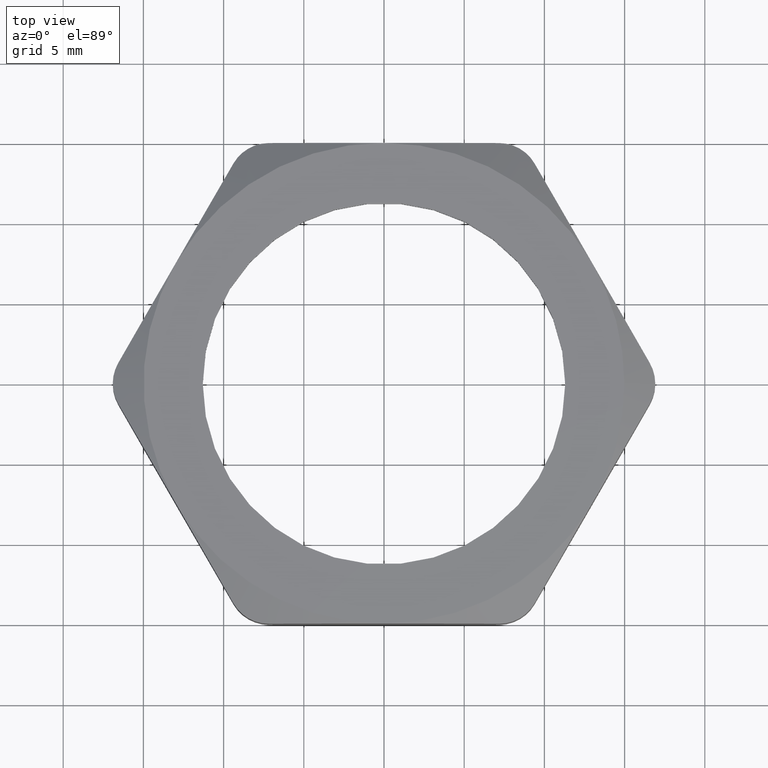
[diagram: clean part render]
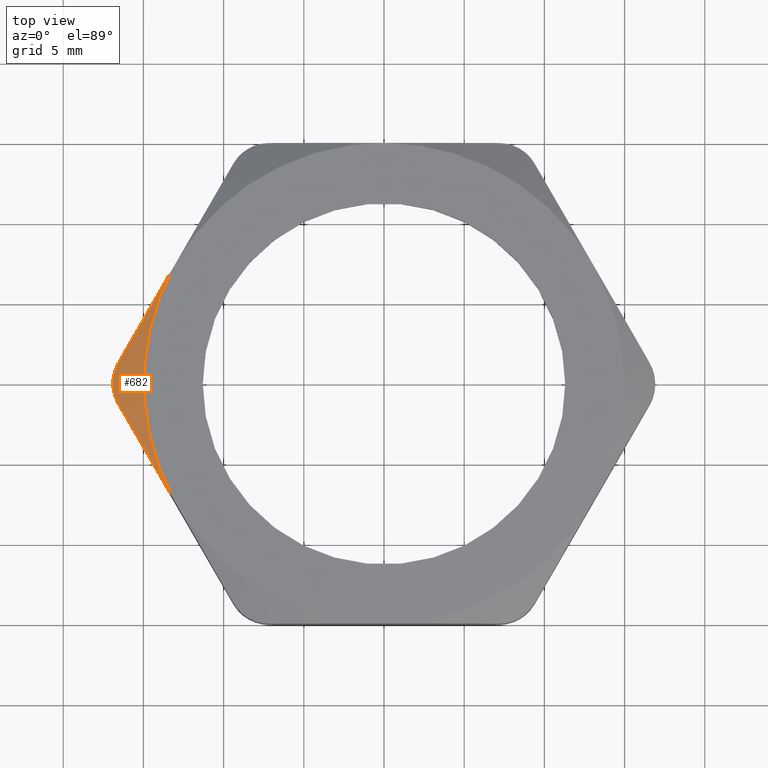
[diagram: same view with one face highlighted and labeled with its STEP entity id]
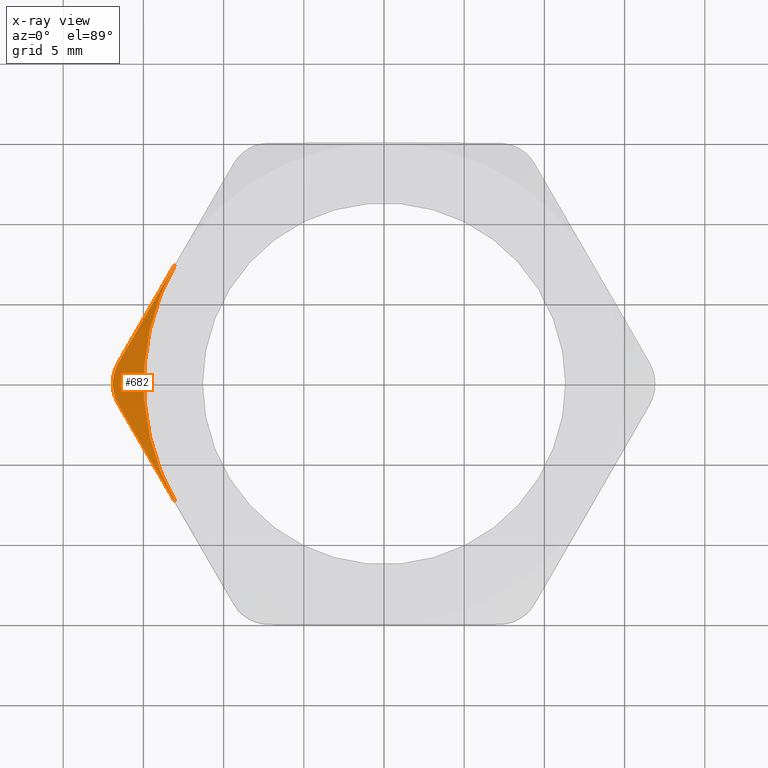
[diagram: x-ray of the same camera — body ghosted, the highlighted face saturated]
A machine part, top view. The second image highlights one B-rep face of the part: STEP entity #682.
The next image is the same camera in x-ray: the body ghosted, the highlighted face saturated — about 0% of this face is hidden behind the body in this view.
In plain terms, the highlighted conical surface has half-angle 60 deg.
Its self-contained STEP definition (entity closure, byte-faithful):
#46 = ORIENTED_EDGE ( 'NONE', *, *, #914, .T. ) ;
#87 = EDGE_CURVE ( 'NONE', #612, #915, #448, .T. ) ;
#112 = ORIENTED_EDGE ( 'NONE', *, *, #641, .T. ) ;
#113 = ORIENTED_EDGE ( 'NONE', *, *, #638, .F. ) ;
#114 = ORIENTED_EDGE ( 'NONE', *, *, #87, .T. ) ;
#439 = CARTESIAN_POINT ( 'NONE',  ( -0.6658032638058331000, 1.280553749522566600E-016, 0.1962349652362502500 ) ) ;
#440 = CARTESIAN_POINT ( 'NONE',  ( -0.6658032638058332100, 0.008796958277295262000, 0.1962349652362503100 ) ) ;
#441 = CARTESIAN_POINT ( 'NONE',  ( -0.6646291145683206300, 0.01761796163042872800, 0.1968098203050944200 ) ) ;
#442 = CARTESIAN_POINT ( 'NONE',  ( -0.6600528044583208200, 0.03455380496755470300, 0.1990651087361324800 ) ) ;
#443 = CARTESIAN_POINT ( 'NONE',  ( -0.6567251149565681600, 0.04251873428871227900, 0.2007090149173710000 ) ) ;
#444 = CARTESIAN_POINT ( 'NONE',  ( -0.6524058041842769600, 0.05000000000000012100, 0.2028654170483545100 ) ) ;
#448 = B_SPLINE_CURVE_WITH_KNOTS ( 'NONE', 3,
 ( #444, #443, #442, #441, #440, #439 ),
 .UNSPECIFIED., .F., .F.,
 ( 4, 2, 4 ),
 ( 2.168404344971008900E-019, 0.0006693429813218865600, 0.001338685962643772900 ),
 .UNSPECIFIED. ) ;
#577 = VERTEX_POINT ( 'NONE', #1208 ) ;
#578 = EDGE_CURVE ( 'NONE', #577, #612, #1260, .T. ) ;
#612 = VERTEX_POINT ( 'NONE', #1352 ) ;
#638 = EDGE_CURVE ( 'NONE', #577, #660, #1404, .T. ) ;
#641 = EDGE_CURVE ( 'NONE', #1326, #660, #1399, .T. ) ;
#660 = VERTEX_POINT ( 'NONE', #1469 ) ;
#682 = ADVANCED_FACE ( 'NONE', ( #1471 ), #1470, .T. ) ;
#683 = EDGE_LOOP ( 'NONE', ( #684, #114, #46, #112, #113 ) ) ;
#684 = ORIENTED_EDGE ( 'NONE', *, *, #578, .T. ) ;
#914 = EDGE_CURVE ( 'NONE', #915, #1326, #1957, .T. ) ;
#915 = VERTEX_POINT ( 'NONE', #1956 ) ;
#1208 = CARTESIAN_POINT ( 'NONE',  ( -0.5109549882328189300, 0.2949999999999999800, 0.2399999999999999900 ) ) ;
#1252 = CARTESIAN_POINT ( 'NONE',  ( -0.6524058041842769600, 0.05000000000000012100, 0.2028654170483545100 ) ) ;
#1253 = CARTESIAN_POINT ( 'NONE',  ( -0.6292673937338334500, 0.09007690250655098200, 0.2144171946891279500 ) ) ;
#1254 = CARTESIAN_POINT ( 'NONE',  ( -0.6059455771186180700, 0.1304714738089080300, 0.2237544903653499700 ) ) ;
#1255 = CARTESIAN_POINT ( 'NONE',  ( -0.5705983417541263800, 0.1916946813673030500, 0.2333592633957465000 ) ) ;
#1256 = CARTESIAN_POINT ( 'NONE',  ( -0.5587551826901052700, 0.2122076345883074400, 0.2358273798961814900 ) ) ;
#1257 = CARTESIAN_POINT ( 'NONE',  ( -0.5349351559654631500, 0.2534651311130362000, 0.2391491891068571500 ) ) ;
#1258 = CARTESIAN_POINT ( 'NONE',  ( -0.5229146370110722100, 0.2742852806753856000, 0.2400000000000003800 ) ) ;
#1259 = CARTESIAN_POINT ( 'NONE',  ( -0.5109549882328189300, 0.2949999999999999800, 0.2399999999999999900 ) ) ;
#1260 = B_SPLINE_CURVE_WITH_KNOTS ( 'NONE', 3,
 ( #1259, #1258, #1257, #1256, #1255, #1254, #1253, #1252 ),
 .UNSPECIFIED., .F., .F.,
 ( 4, 2, 2, 4 ),
 ( 0.008754818042027729500, 0.01055895048476103600, 0.01236308292749434300, 0.01597134781296095600 ),
 .UNSPECIFIED. ) ;
#1326 = VERTEX_POINT ( 'NONE', #2291 ) ;
#1352 = CARTESIAN_POINT ( 'NONE',  ( -0.6524058041842769600, 0.05000000000000012100, 0.2028654170483545100 ) ) ;
#1393 = CARTESIAN_POINT ( 'NONE',  ( -0.5109549882328188200, -0.2949999999999997600, 0.2399999999999999900 ) ) ;
#1394 = CARTESIAN_POINT ( 'NONE',  ( -0.5349746398928855200, -0.2533967429446583000, 0.2400000000000004400 ) ) ;
#1395 = CARTESIAN_POINT ( 'NONE',  ( -0.5587481660595381400, -0.2122197877489475900, 0.2365731363345083300 ) ) ;
#1396 = CARTESIAN_POINT ( 'NONE',  ( -0.6058687422853292800, -0.1306045556439552900, 0.2237814809296384300 ) ) ;
#1397 = CARTESIAN_POINT ( 'NONE',  ( -0.6292176136207235900, -0.09016312419166337700, 0.2144420472518745200 ) ) ;
#1398 = CARTESIAN_POINT ( 'NONE',  ( -0.6524058041842769600, -0.04999999999999985000, 0.2028654170483544800 ) ) ;
#1399 = B_SPLINE_CURVE_WITH_KNOTS ( 'NONE', 3,
 ( #1398, #1397, #1396, #1395, #1394, #1393 ),
 .UNSPECIFIED., .F., .F.,
 ( 4, 2, 4 ),
 ( 0.001508011112065879200, 0.005131414577046801800, 0.008754818042027724300 ),
 .UNSPECIFIED. ) ;
#1400 = DIRECTION ( 'NONE',  ( 1.000000000000000000, 0.0000000000000000000, 0.0000000000000000000 ) ) ;
#1401 = DIRECTION ( 'NONE',  ( 0.0000000000000000000, 0.0000000000000000000, 1.000000000000000000 ) ) ;
#1402 = CARTESIAN_POINT ( 'NONE',  ( 0.0000000000000000000, 0.0000000000000000000, 0.2399999999999999900 ) ) ;
#1403 = AXIS2_PLACEMENT_3D ( 'NONE', #1402, #1401, #1400 ) ;
#1404 = CIRCLE ( 'NONE', #1403, 0.5900000000000000800 ) ;
#1469 = CARTESIAN_POINT ( 'NONE',  ( -0.5109549882328188200, -0.2949999999999997600, 0.2399999999999999900 ) ) ;
#1470 = CONICAL_SURFACE ( 'NONE', #1527, 0.5900000000000000800, 1.047197551196600100 ) ;
#1471 = FACE_OUTER_BOUND ( 'NONE', #683, .T. ) ;
#1513 = DIRECTION ( 'NONE',  ( 1.000000000000000000, 0.0000000000000000000, 0.0000000000000000000 ) ) ;
#1514 = DIRECTION ( 'NONE',  ( 0.0000000000000000000, 0.0000000000000000000, -1.000000000000000000 ) ) ;
#1526 = CARTESIAN_POINT ( 'NONE',  ( 0.0000000000000000000, 0.0000000000000000000, 0.2399999999999999900 ) ) ;
#1527 = AXIS2_PLACEMENT_3D ( 'NONE', #1526, #1514, #1513 ) ;
#1950 = CARTESIAN_POINT ( 'NONE',  ( -0.6524058041842769600, -0.04999999999999985000, 0.2028654170483544800 ) ) ;
#1951 = CARTESIAN_POINT ( 'NONE',  ( -0.6567127633698604000, -0.04254012786444474900, 0.2007151814076519600 ) ) ;
#1952 = CARTESIAN_POINT ( 'NONE',  ( -0.6600928457595448600, -0.03442354967998558600, 0.1990453555233605600 ) ) ;
#1953 = CARTESIAN_POINT ( 'NONE',  ( -0.6646172118404192200, -0.01764397096444915400, 0.1968157064453802100 ) ) ;
#1954 = CARTESIAN_POINT ( 'NONE',  ( -0.6658032638058329900, -0.008769439487398072000, 0.1962349652362502300 ) ) ;
#1955 = CARTESIAN_POINT ( 'NONE',  ( -0.6658032638058331000, 1.280553749522566600E-016, 0.1962349652362502500 ) ) ;
#1956 = CARTESIAN_POINT ( 'NONE',  ( -0.6658032638058331000, 1.280553749522566600E-016, 0.1962349652362502500 ) ) ;
#1957 = B_SPLINE_CURVE_WITH_KNOTS ( 'NONE', 3,
 ( #1955, #1954, #1953, #1952, #1951, #1950 ),
 .UNSPECIFIED., .F., .F.,
 ( 4, 2, 4 ),
 ( 0.001338685962643772900, 0.002005935094217670000, 0.002673184225791567200 ),
 .UNSPECIFIED. ) ;
#2291 = CARTESIAN_POINT ( 'NONE',  ( -0.6524058041842769600, -0.04999999999999985000, 0.2028654170483544800 ) ) ;